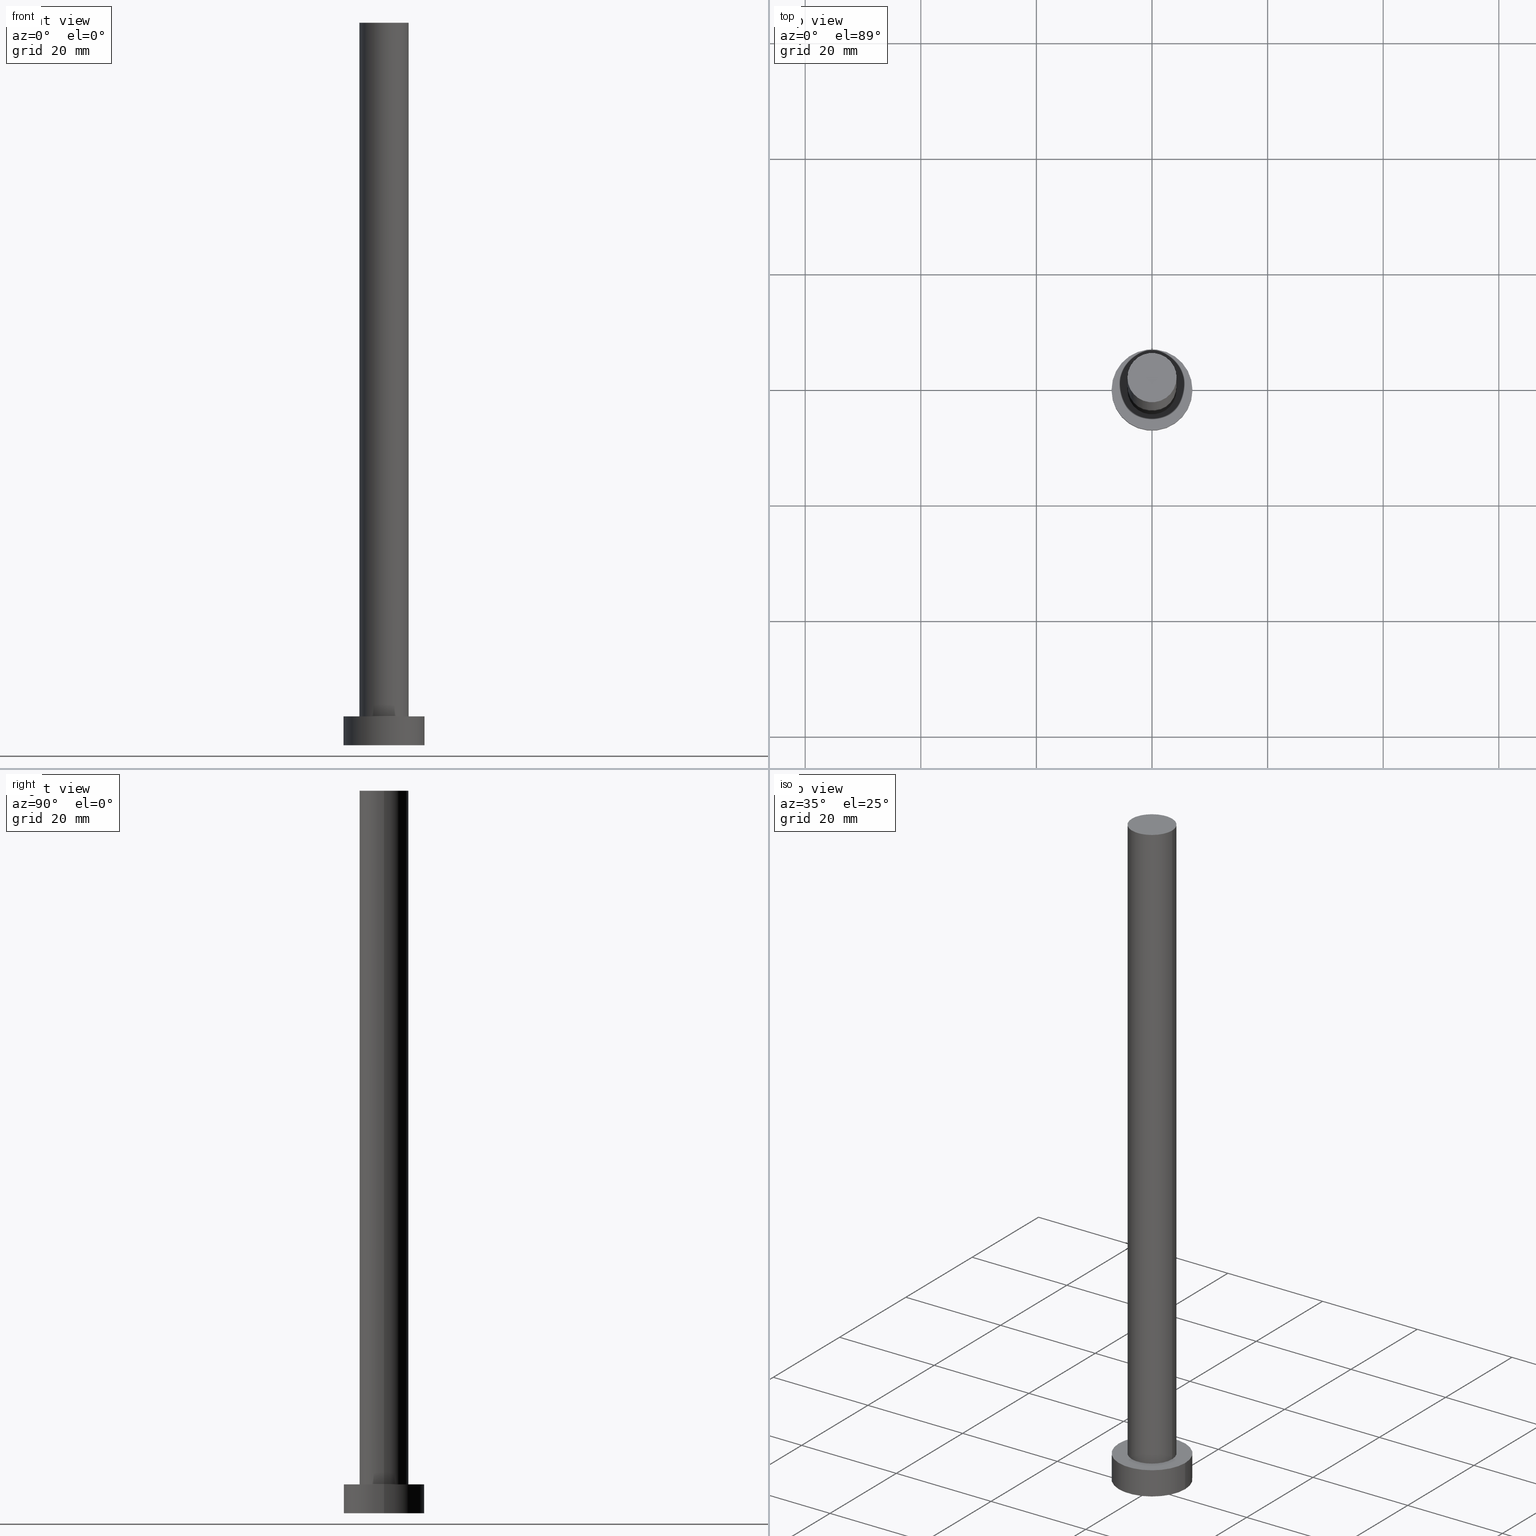
[diagram: canonical four-view strip — front | top / right | iso, engineering-drawing reading convention]
A machine part, canonical four-view strip (front | top / right | iso — engineering-drawing reading convention). The complete STEP part file that produces these views, byte-faithful:
ISO-10303-21;
HEADER;
FILE_DESCRIPTION (( 'STEP AP203' ),
    '1' );
FILE_NAME ('7eeb.STEP',
    '2023-02-13T12:53:10',
    ( '' ),
    ( '' ),
    'SwSTEP 2.0',
    'SolidWorks 2019',
    '' );
FILE_SCHEMA (( 'CONFIG_CONTROL_DESIGN' ));
ENDSEC;

DATA;
#1 = CARTESIAN_POINT ( 'NONE',  ( -7.000000000000000000, 0.000000000000000000, 5.000000000000000000 ) ) ;
#2 = LOCAL_TIME ( 13, 53, 10.00000000000000000, #69 ) ;
#3 = EDGE_CURVE ( 'NONE', #116, #118, #183, .T. ) ;
#4 = CARTESIAN_POINT ( 'NONE',  ( 0.000000000000000000, 0.000000000000000000, 5.000000000000000000 ) ) ;
#5 = CYLINDRICAL_SURFACE ( 'NONE', #50, 7.000000000000000000 ) ;
#6 = EDGE_LOOP ( 'NONE', ( #22, #20 ) ) ;
#7 = CC_DESIGN_APPROVAL ( #171, ( #172 ) ) ;
#8 = EDGE_LOOP ( 'NONE', ( #154, #141 ) ) ;
#9 = ADVANCED_FACE ( 'NONE', ( #101 ), #25, .T. ) ;
#10 = LINE ( 'NONE', #144, #17 ) ;
#11 = CC_DESIGN_APPROVAL ( #145, ( #136 ) ) ;
#12 = ORIENTED_EDGE ( 'NONE', *, *, #238, .T. ) ;
#13 = CALENDAR_DATE ( 2023, 13, 2 ) ;
#14 = CARTESIAN_POINT ( 'NONE',  ( 0.000000000000000000, 0.000000000000000000, 125.0000000000000000 ) ) ;
#15 = CC_DESIGN_PERSON_AND_ORGANIZATION_ASSIGNMENT ( #48, #108, ( #114 ) ) ;
#16 = APPROVAL_DATE_TIME ( #131, #55 ) ;
#17 = VECTOR ( 'NONE', #107, 1000.000000000000000 ) ;
#18 = COORDINATED_UNIVERSAL_TIME_OFFSET ( 1, 0, .AHEAD. ) ;
#19 = CIRCLE ( 'NONE', #150, 4.250000000000000000 ) ;
#20 = ORIENTED_EDGE ( 'NONE', *, *, #110, .F. ) ;
#21 = DIRECTION ( 'NONE',  ( 0.000000000000000000, 0.000000000000000000, 1.000000000000000000 ) ) ;
#22 = ORIENTED_EDGE ( 'NONE', *, *, #152, .F. ) ;
#23 = ORIENTED_EDGE ( 'NONE', *, *, #247, .F. ) ;
#24 = CARTESIAN_POINT ( 'NONE',  ( 4.250000000000000000, 5.204748896376250699E-16, 5.000000000000000000 ) ) ;
#25 = CYLINDRICAL_SURFACE ( 'NONE', #205, 7.000000000000000000 ) ;
#26 =( NAMED_UNIT ( * ) SI_UNIT ( $, .STERADIAN. ) SOLID_ANGLE_UNIT ( ) );
#27 = UNCERTAINTY_MEASURE_WITH_UNIT (LENGTH_MEASURE( 1.000000000000000082E-05 ), #70, 'distance_accuracy_value', 'NONE');
#28 = PERSON_AND_ORGANIZATION_ROLE ( 'creator' ) ;
#29 = FACE_BOUND ( 'NONE', #151, .T. ) ;
#30 = ADVANCED_FACE ( 'NONE', ( #139 ), #134, .F. ) ;
#31 = AXIS2_PLACEMENT_3D ( 'NONE', #61, #212, #215 ) ;
#32 = SECURITY_CLASSIFICATION_LEVEL ( 'unclassified' ) ;
#33 = CLOSED_SHELL ( 'NONE', ( #75, #9, #123, #93, #30, #38, #52 ) ) ;
#34 = APPROVAL_ROLE ( '' ) ;
#35 = AXIS2_PLACEMENT_3D ( 'NONE', #4, #77, #178 ) ;
#36 = DESIGN_CONTEXT ( 'detailed design', #176, 'design' ) ;
#37 = EDGE_LOOP ( 'NONE', ( #81, #102, #120, #213 ) ) ;
#38 = ADVANCED_FACE ( 'NONE', ( #95 ), #207, .T. ) ;
#39 = CARTESIAN_POINT ( 'NONE',  ( 0.000000000000000000, 0.000000000000000000, 0.000000000000000000 ) ) ;
#40 = LOCAL_TIME ( 13, 53, 10.00000000000000000, #92 ) ;
#41 = VERTEX_POINT ( 'NONE', #153 ) ;
#42 = DIRECTION ( 'NONE',  ( 1.000000000000000000, 0.000000000000000000, 0.000000000000000000 ) ) ;
#43 = ORIENTED_EDGE ( 'NONE', *, *, #247, .T. ) ;
#44 = CARTESIAN_POINT ( 'NONE',  ( 0.000000000000000000, 0.000000000000000000, 5.000000000000000000 ) ) ;
#45 = CC_DESIGN_APPROVAL ( #55, ( #122 ) ) ;
#46 = FACE_OUTER_BOUND ( 'NONE', #8, .T. ) ;
#47 = AXIS2_PLACEMENT_3D ( 'NONE', #175, #62, #224 ) ;
#48 = PERSON_AND_ORGANIZATION ( #185, #251 ) ;
#49 = CARTESIAN_POINT ( 'NONE',  ( -4.250000000000000000, 0.000000000000000000, 125.0000000000000000 ) ) ;
#50 = AXIS2_PLACEMENT_3D ( 'NONE', #159, #133, #182 ) ;
#51 = APPROVAL_ROLE ( '' ) ;
#52 = ADVANCED_FACE ( 'NONE', ( #98 ), #243, .T. ) ;
#53 = APPROVAL_STATUS ( 'not_yet_approved' ) ;
#54 = CIRCLE ( 'NONE', #47, 7.000000000000000000 ) ;
#55 = APPROVAL ( #146, 'NEUR�EN�' ) ;
#56 = DIRECTION ( 'NONE',  ( -1.000000000000000000, 0.000000000000000000, 0.000000000000000000 ) ) ;
#57 = FACE_OUTER_BOUND ( 'NONE', #37, .T. ) ;
#58 = ORIENTED_EDGE ( 'NONE', *, *, #3, .F. ) ;
#59 = MANIFOLD_SOLID_BREP ( 'P�idat vysunut�m3', #33 ) ;
#60 = CARTESIAN_POINT ( 'NONE',  ( 7.000000000000000000, 8.572527594031473190E-16, 0.000000000000000000 ) ) ;
#61 = CARTESIAN_POINT ( 'NONE',  ( 0.000000000000000000, 0.000000000000000000, 125.0000000000000000 ) ) ;
#62 = DIRECTION ( 'NONE',  ( 0.000000000000000000, 0.000000000000000000, 1.000000000000000000 ) ) ;
#63 = ORIENTED_EDGE ( 'NONE', *, *, #169, .F. ) ;
#64 = DIRECTION ( 'NONE',  ( 0.000000000000000000, 0.000000000000000000, 1.000000000000000000 ) ) ;
#65 = ORIENTED_EDGE ( 'NONE', *, *, #110, .T. ) ;
#66 = EDGE_LOOP ( 'NONE', ( #63, #160, #232, #142 ) ) ;
#67 =( NAMED_UNIT ( * ) PLANE_ANGLE_UNIT ( ) SI_UNIT ( $, .RADIAN. ) );
#68 = VECTOR ( 'NONE', #206, 1000.000000000000000 ) ;
#69 = COORDINATED_UNIVERSAL_TIME_OFFSET ( 1, 0, .AHEAD. ) ;
#70 =( LENGTH_UNIT ( ) NAMED_UNIT ( * ) SI_UNIT ( .MILLI., .METRE. ) );
#71 = LINE ( 'NONE', #49, #143 ) ;
#72 = AXIS2_PLACEMENT_3D ( 'NONE', #227, #179, #42 ) ;
#73 = PERSON_AND_ORGANIZATION_ROLE ( 'design_supplier' ) ;
#74 = PERSON_AND_ORGANIZATION_ROLE ( 'creator' ) ;
#75 = ADVANCED_FACE ( 'NONE', ( #125 ), #211, .T. ) ;
#76 = APPROVAL_PERSON_ORGANIZATION ( #91, #171, #34 ) ;
#77 = DIRECTION ( 'NONE',  ( 0.000000000000000000, 0.000000000000000000, 1.000000000000000000 ) ) ;
#78 = DIRECTION ( 'NONE',  ( -0.000000000000000000, -0.000000000000000000, -1.000000000000000000 ) ) ;
#79 = CARTESIAN_POINT ( 'NONE',  ( -7.000000000000000000, 0.000000000000000000, 0.000000000000000000 ) ) ;
#80 = EDGE_CURVE ( 'NONE', #41, #208, #71, .T. ) ;
#81 = ORIENTED_EDGE ( 'NONE', *, *, #238, .F. ) ;
#82 = LOCAL_TIME ( 13, 53, 10.00000000000000000, #18 ) ;
#83 = CARTESIAN_POINT ( 'NONE',  ( 0.000000000000000000, 0.000000000000000000, 5.000000000000000000 ) ) ;
#84 = CARTESIAN_POINT ( 'NONE',  ( 0.000000000000000000, 0.000000000000000000, 0.000000000000000000 ) ) ;
#85 = ORIENTED_EDGE ( 'NONE', *, *, #80, .T. ) ;
#86 = EDGE_CURVE ( 'NONE', #118, #208, #127, .T. ) ;
#87 = DIRECTION ( 'NONE',  ( -0.000000000000000000, -0.000000000000000000, -1.000000000000000000 ) ) ;
#88 = DATE_AND_TIME ( #105, #168 ) ;
#89 = COORDINATED_UNIVERSAL_TIME_OFFSET ( 1, 0, .AHEAD. ) ;
#90 =( GEOMETRIC_REPRESENTATION_CONTEXT ( 3 ) GLOBAL_UNCERTAINTY_ASSIGNED_CONTEXT ( ( #27 ) ) GLOBAL_UNIT_ASSIGNED_CONTEXT ( ( #70, #67, #26 ) ) REPRESENTATION_CONTEXT ( 'NONE', 'WORKASPACE' ) );
#91 = PERSON_AND_ORGANIZATION ( #185, #251 ) ;
#92 = COORDINATED_UNIVERSAL_TIME_OFFSET ( 1, 0, .AHEAD. ) ;
#93 = ADVANCED_FACE ( 'NONE', ( #29, #46 ), #188, .T. ) ;
#94 = AXIS2_PLACEMENT_3D ( 'NONE', #84, #64, #140 ) ;
#95 = FACE_OUTER_BOUND ( 'NONE', #225, .T. ) ;
#96 = EDGE_CURVE ( 'NONE', #161, #124, #99, .T. ) ;
#97 = CARTESIAN_POINT ( 'NONE',  ( 0.000000000000000000, 0.000000000000000000, 125.0000000000000000 ) ) ;
#98 = FACE_OUTER_BOUND ( 'NONE', #244, .T. ) ;
#99 = LINE ( 'NONE', #1, #68 ) ;
#100 = AXIS2_PLACEMENT_3D ( 'NONE', #39, #117, #202 ) ;
#101 = FACE_OUTER_BOUND ( 'NONE', #231, .T. ) ;
#102 = ORIENTED_EDGE ( 'NONE', *, *, #189, .F. ) ;
#103 = CC_DESIGN_DATE_AND_TIME_ASSIGNMENT ( #88, #200, ( #136 ) ) ;
#104 = APPLICATION_PROTOCOL_DEFINITION ( 'international standard', 'config_control_design', 1994, #184 ) ;
#105 = CALENDAR_DATE ( 2023, 13, 2 ) ;
#106 = APPROVAL_PERSON_ORGANIZATION ( #129, #55, #51 ) ;
#107 = DIRECTION ( 'NONE',  ( -0.000000000000000000, -0.000000000000000000, -1.000000000000000000 ) ) ;
#108 = PERSON_AND_ORGANIZATION_ROLE ( 'design_owner' ) ;
#109 = CARTESIAN_POINT ( 'NONE',  ( 0.000000000000000000, 0.000000000000000000, 5.000000000000000000 ) ) ;
#110 = EDGE_CURVE ( 'NONE', #192, #124, #174, .T. ) ;
#111 = DATE_AND_TIME ( #216, #40 ) ;
#112 = PERSON_AND_ORGANIZATION ( #185, #251 ) ;
#113 = DIRECTION ( 'NONE',  ( 1.000000000000000000, 0.000000000000000000, -0.000000000000000000 ) ) ;
#114 = PRODUCT ( '7eeb', '7eeb', '', ( #252 ) ) ;
#115 = APPROVAL_PERSON_ORGANIZATION ( #121, #145, #128 ) ;
#116 = VERTEX_POINT ( 'NONE', #119 ) ;
#117 = DIRECTION ( 'NONE',  ( 0.000000000000000000, 0.000000000000000000, 1.000000000000000000 ) ) ;
#118 = VERTEX_POINT ( 'NONE', #24 ) ;
#119 = CARTESIAN_POINT ( 'NONE',  ( 4.250000000000000000, 5.204748896376250699E-16, 125.0000000000000000 ) ) ;
#120 = ORIENTED_EDGE ( 'NONE', *, *, #96, .T. ) ;
#121 = PERSON_AND_ORGANIZATION ( #185, #251 ) ;
#122 = PRODUCT_DEFINITION_FORMATION_WITH_SPECIFIED_SOURCE ( 'LIBOVOLN�', '', #114, .NOT_KNOWN. ) ;
#123 = ADVANCED_FACE ( 'NONE', ( #57 ), #5, .T. ) ;
#124 = VERTEX_POINT ( 'NONE', #79 ) ;
#125 = FACE_OUTER_BOUND ( 'NONE', #66, .T. ) ;
#126 = DATE_AND_TIME ( #13, #2 ) ;
#127 = CIRCLE ( 'NONE', #147, 4.250000000000000000 ) ;
#128 = APPROVAL_ROLE ( '' ) ;
#129 = PERSON_AND_ORGANIZATION ( #185, #251 ) ;
#130 = PERSON_AND_ORGANIZATION_ROLE ( 'classification_officer' ) ;
#131 = DATE_AND_TIME ( #198, #82 ) ;
#132 = AXIS2_PLACEMENT_3D ( 'NONE', #177, #78, #135 ) ;
#133 = DIRECTION ( 'NONE',  ( -0.000000000000000000, -0.000000000000000000, -1.000000000000000000 ) ) ;
#134 = PLANE ( 'NONE',  #248 ) ;
#135 = DIRECTION ( 'NONE',  ( -1.000000000000000000, 0.000000000000000000, 0.000000000000000000 ) ) ;
#136 = PRODUCT_DEFINITION ( 'NEZN�M�', '', #122, #36 ) ;
#137 = DIRECTION ( 'NONE',  ( 1.000000000000000000, 0.000000000000000000, 0.000000000000000000 ) ) ;
#138 = ORIENTED_EDGE ( 'NONE', *, *, #195, .F. ) ;
#139 = FACE_OUTER_BOUND ( 'NONE', #6, .T. ) ;
#140 = DIRECTION ( 'NONE',  ( 1.000000000000000000, 0.000000000000000000, 0.000000000000000000 ) ) ;
#141 = ORIENTED_EDGE ( 'NONE', *, *, #203, .T. ) ;
#142 = ORIENTED_EDGE ( 'NONE', *, *, #80, .F. ) ;
#143 = VECTOR ( 'NONE', #162, 1000.000000000000000 ) ;
#144 = CARTESIAN_POINT ( 'NONE',  ( 7.000000000000000000, 8.572527594031473190E-16, 5.000000000000000000 ) ) ;
#145 = APPROVAL ( #187, 'NEUR�EN�' ) ;
#146 = APPROVAL_STATUS ( 'not_yet_approved' ) ;
#147 = AXIS2_PLACEMENT_3D ( 'NONE', #109, #167, #253 ) ;
#148 = CC_DESIGN_PERSON_AND_ORGANIZATION_ASSIGNMENT ( #235, #28, ( #136 ) ) ;
#149 = COORDINATED_UNIVERSAL_TIME_OFFSET ( 1, 0, .AHEAD. ) ;
#150 = AXIS2_PLACEMENT_3D ( 'NONE', #156, #230, #239 ) ;
#151 = EDGE_LOOP ( 'NONE', ( #23, #186 ) ) ;
#152 = EDGE_CURVE ( 'NONE', #124, #192, #155, .T. ) ;
#153 = CARTESIAN_POINT ( 'NONE',  ( -4.250000000000000000, 0.000000000000000000, 125.0000000000000000 ) ) ;
#154 = ORIENTED_EDGE ( 'NONE', *, *, #189, .T. ) ;
#155 = CIRCLE ( 'NONE', #94, 7.000000000000000000 ) ;
#156 = CARTESIAN_POINT ( 'NONE',  ( 0.000000000000000000, 0.000000000000000000, 125.0000000000000000 ) ) ;
#157 = DIRECTION ( 'NONE',  ( -0.000000000000000000, -0.000000000000000000, -1.000000000000000000 ) ) ;
#158 = CC_DESIGN_PERSON_AND_ORGANIZATION_ASSIGNMENT ( #173, #73, ( #122 ) ) ;
#159 = CARTESIAN_POINT ( 'NONE',  ( 0.000000000000000000, 0.000000000000000000, 5.000000000000000000 ) ) ;
#160 = ORIENTED_EDGE ( 'NONE', *, *, #3, .T. ) ;
#161 = VERTEX_POINT ( 'NONE', #241 ) ;
#162 = DIRECTION ( 'NONE',  ( -0.000000000000000000, -0.000000000000000000, -1.000000000000000000 ) ) ;
#163 = DIRECTION ( 'NONE',  ( 0.000000000000000000, 0.000000000000000000, 1.000000000000000000 ) ) ;
#164 = CIRCLE ( 'NONE', #72, 7.000000000000000000 ) ;
#165 = APPLICATION_PROTOCOL_DEFINITION ( 'international standard', 'config_control_design', 1994, #176 ) ;
#166 = CC_DESIGN_PERSON_AND_ORGANIZATION_ASSIGNMENT ( #254, #130, ( #172 ) ) ;
#167 = DIRECTION ( 'NONE',  ( 0.000000000000000000, 0.000000000000000000, 1.000000000000000000 ) ) ;
#168 = LOCAL_TIME ( 13, 53, 10.00000000000000000, #89 ) ;
#169 = EDGE_CURVE ( 'NONE', #116, #41, #19, .T. ) ;
#170 = APPROVAL_DATE_TIME ( #196, #171 ) ;
#171 = APPROVAL ( #53, 'NEUR�EN�' ) ;
#172 = SECURITY_CLASSIFICATION ( '', '', #32 ) ;
#173 = PERSON_AND_ORGANIZATION ( #185, #251 ) ;
#174 = CIRCLE ( 'NONE', #100, 7.000000000000000000 ) ;
#175 = CARTESIAN_POINT ( 'NONE',  ( 0.000000000000000000, 0.000000000000000000, 5.000000000000000000 ) ) ;
#176 = APPLICATION_CONTEXT ( 'configuration controlled 3d designs of mechanical parts and assemblies' ) ;
#177 = CARTESIAN_POINT ( 'NONE',  ( 0.000000000000000000, 0.000000000000000000, 125.0000000000000000 ) ) ;
#178 = DIRECTION ( 'NONE',  ( 1.000000000000000000, 0.000000000000000000, -0.000000000000000000 ) ) ;
#179 = DIRECTION ( 'NONE',  ( 0.000000000000000000, 0.000000000000000000, 1.000000000000000000 ) ) ;
#180 = ORIENTED_EDGE ( 'NONE', *, *, #96, .F. ) ;
#181 = CIRCLE ( 'NONE', #222, 4.250000000000000000 ) ;
#182 = DIRECTION ( 'NONE',  ( -1.000000000000000000, 0.000000000000000000, 0.000000000000000000 ) ) ;
#183 = LINE ( 'NONE', #245, #221 ) ;
#184 = APPLICATION_CONTEXT ( 'configuration controlled 3d designs of mechanical parts and assemblies' ) ;
#185 = PERSON ( 'NEUR�EN�', 'NEUR�EN�', 'NEUR�EN�', ('NEUR�EN�'), ('NEUR�EN�'), ('NEUR�EN�') ) ;
#186 = ORIENTED_EDGE ( 'NONE', *, *, #86, .F. ) ;
#187 = APPROVAL_STATUS ( 'not_yet_approved' ) ;
#188 = PLANE ( 'NONE',  #35 ) ;
#189 = EDGE_CURVE ( 'NONE', #161, #242, #54, .T. ) ;
#190 = LOCAL_TIME ( 13, 53, 10.00000000000000000, #149 ) ;
#191 = DIRECTION ( 'NONE',  ( 1.000000000000000000, 0.000000000000000000, 0.000000000000000000 ) ) ;
#192 = VERTEX_POINT ( 'NONE', #60 ) ;
#193 = APPROVAL_DATE_TIME ( #126, #145 ) ;
#194 = DIRECTION ( 'NONE',  ( -1.000000000000000000, 0.000000000000000000, 0.000000000000000000 ) ) ;
#195 = EDGE_CURVE ( 'NONE', #41, #116, #197, .T. ) ;
#196 = DATE_AND_TIME ( #218, #190 ) ;
#197 = CIRCLE ( 'NONE', #209, 4.250000000000000000 ) ;
#198 = CALENDAR_DATE ( 2023, 13, 2 ) ;
#199 = DATE_TIME_ROLE ( 'classification_date' ) ;
#200 = DATE_TIME_ROLE ( 'creation_date' ) ;
#201 = ADVANCED_BREP_SHAPE_REPRESENTATION ( '7eeb', ( #59, #237 ), #90 ) ;
#202 = DIRECTION ( 'NONE',  ( 1.000000000000000000, 0.000000000000000000, 0.000000000000000000 ) ) ;
#203 = EDGE_CURVE ( 'NONE', #242, #161, #164, .T. ) ;
#204 = ORIENTED_EDGE ( 'NONE', *, *, #195, .T. ) ;
#205 = AXIS2_PLACEMENT_3D ( 'NONE', #83, #157, #56 ) ;
#206 = DIRECTION ( 'NONE',  ( -0.000000000000000000, -0.000000000000000000, -1.000000000000000000 ) ) ;
#207 = CYLINDRICAL_SURFACE ( 'NONE', #132, 4.250000000000000000 ) ;
#208 = VERTEX_POINT ( 'NONE', #229 ) ;
#209 = AXIS2_PLACEMENT_3D ( 'NONE', #97, #21, #137 ) ;
#210 = ORIENTED_EDGE ( 'NONE', *, *, #169, .T. ) ;
#211 = CYLINDRICAL_SURFACE ( 'NONE', #217, 4.250000000000000000 ) ;
#212 = DIRECTION ( 'NONE',  ( 0.000000000000000000, 0.000000000000000000, 1.000000000000000000 ) ) ;
#213 = ORIENTED_EDGE ( 'NONE', *, *, #152, .T. ) ;
#214 = CARTESIAN_POINT ( 'NONE',  ( 0.000000000000000000, 0.000000000000000000, 0.000000000000000000 ) ) ;
#215 = DIRECTION ( 'NONE',  ( 1.000000000000000000, 0.000000000000000000, -0.000000000000000000 ) ) ;
#216 = CALENDAR_DATE ( 2023, 13, 2 ) ;
#217 = AXIS2_PLACEMENT_3D ( 'NONE', #14, #87, #194 ) ;
#218 = CALENDAR_DATE ( 2023, 13, 2 ) ;
#219 = CC_DESIGN_PERSON_AND_ORGANIZATION_ASSIGNMENT ( #112, #74, ( #122 ) ) ;
#220 = SHAPE_DEFINITION_REPRESENTATION ( #255, #201 ) ;
#221 = VECTOR ( 'NONE', #240, 1000.000000000000000 ) ;
#222 = AXIS2_PLACEMENT_3D ( 'NONE', #44, #236, #191 ) ;
#223 = CARTESIAN_POINT ( 'NONE',  ( 0.000000000000000000, 0.000000000000000000, 0.000000000000000000 ) ) ;
#224 = DIRECTION ( 'NONE',  ( 1.000000000000000000, 0.000000000000000000, 0.000000000000000000 ) ) ;
#225 = EDGE_LOOP ( 'NONE', ( #58, #138, #85, #43 ) ) ;
#226 = CC_DESIGN_DATE_AND_TIME_ASSIGNMENT ( #111, #199, ( #172 ) ) ;
#227 = CARTESIAN_POINT ( 'NONE',  ( 0.000000000000000000, 0.000000000000000000, 5.000000000000000000 ) ) ;
#228 = DIRECTION ( 'NONE',  ( 0.000000000000000000, 0.000000000000000000, 1.000000000000000000 ) ) ;
#229 = CARTESIAN_POINT ( 'NONE',  ( -4.250000000000000000, 0.000000000000000000, 5.000000000000000000 ) ) ;
#230 = DIRECTION ( 'NONE',  ( 0.000000000000000000, 0.000000000000000000, 1.000000000000000000 ) ) ;
#231 = EDGE_LOOP ( 'NONE', ( #246, #12, #65, #180 ) ) ;
#232 = ORIENTED_EDGE ( 'NONE', *, *, #86, .T. ) ;
#233 = CC_DESIGN_SECURITY_CLASSIFICATION ( #172, ( #122 ) ) ;
#234 = PRODUCT_RELATED_PRODUCT_CATEGORY ( 'detail', '', ( #114 ) ) ;
#235 = PERSON_AND_ORGANIZATION ( #185, #251 ) ;
#236 = DIRECTION ( 'NONE',  ( 0.000000000000000000, 0.000000000000000000, 1.000000000000000000 ) ) ;
#237 = AXIS2_PLACEMENT_3D ( 'NONE', #214, #163, #249 ) ;
#238 = EDGE_CURVE ( 'NONE', #242, #192, #10, .T. ) ;
#239 = DIRECTION ( 'NONE',  ( 1.000000000000000000, 0.000000000000000000, 0.000000000000000000 ) ) ;
#240 = DIRECTION ( 'NONE',  ( -0.000000000000000000, -0.000000000000000000, -1.000000000000000000 ) ) ;
#241 = CARTESIAN_POINT ( 'NONE',  ( -7.000000000000000000, 0.000000000000000000, 5.000000000000000000 ) ) ;
#242 = VERTEX_POINT ( 'NONE', #250 ) ;
#243 = PLANE ( 'NONE',  #31 ) ;
#244 = EDGE_LOOP ( 'NONE', ( #204, #210 ) ) ;
#245 = CARTESIAN_POINT ( 'NONE',  ( 4.250000000000000000, 5.204748896376250699E-16, 125.0000000000000000 ) ) ;
#246 = ORIENTED_EDGE ( 'NONE', *, *, #203, .F. ) ;
#247 = EDGE_CURVE ( 'NONE', #208, #118, #181, .T. ) ;
#248 = AXIS2_PLACEMENT_3D ( 'NONE', #223, #228, #113 ) ;
#249 = DIRECTION ( 'NONE',  ( 1.000000000000000000, 0.000000000000000000, 0.000000000000000000 ) ) ;
#250 = CARTESIAN_POINT ( 'NONE',  ( 7.000000000000000000, 8.572527594031473190E-16, 5.000000000000000000 ) ) ;
#251 = ORGANIZATION ( 'NEUR�EN�', 'NEUR�EN�', '' ) ;
#252 = MECHANICAL_CONTEXT ( 'NONE', #184, 'mechanical' ) ;
#253 = DIRECTION ( 'NONE',  ( 1.000000000000000000, 0.000000000000000000, 0.000000000000000000 ) ) ;
#254 = PERSON_AND_ORGANIZATION ( #185, #251 ) ;
#255 = PRODUCT_DEFINITION_SHAPE ( 'NONE', 'NONE',  #136 ) ;
ENDSEC;
END-ISO-10303-21;
